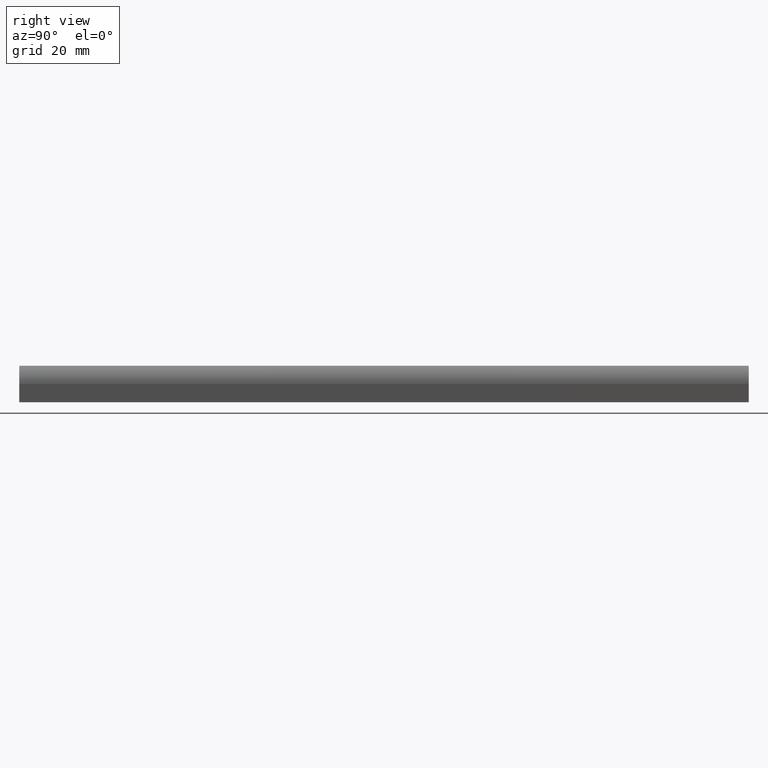
[diagram: clean part render]
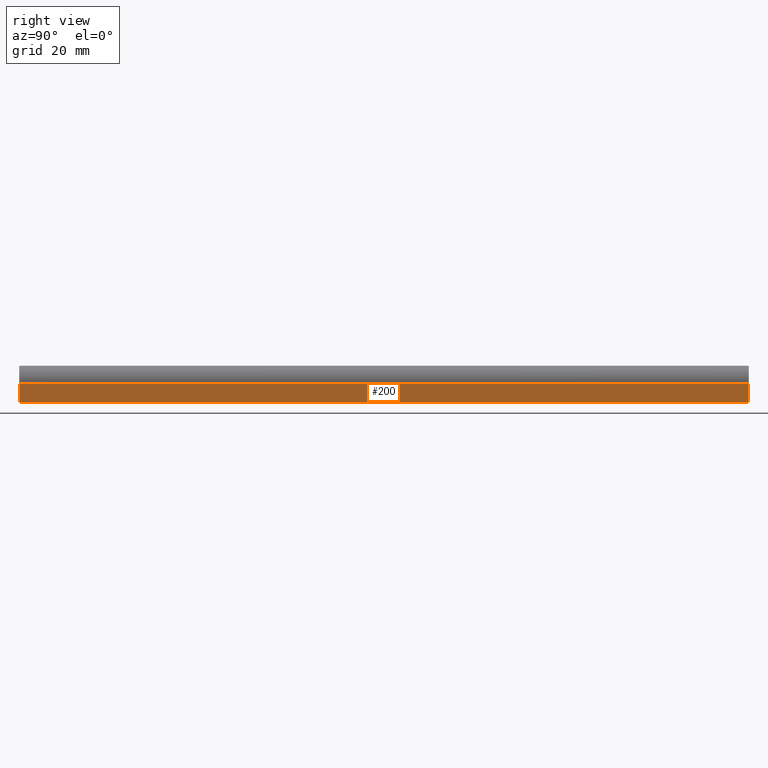
[diagram: same view with one face highlighted and labeled with its STEP entity id]
A machine part, right view. The second image highlights one B-rep face of the part: STEP entity #200.
In plain terms, the highlighted face is a freeform B-spline surface patch.
Its self-contained STEP definition (entity closure, byte-faithful):
#51=CARTESIAN_POINT('',(10.0,0.0,0.0));
#52=VERTEX_POINT('',#51);
#58=CARTESIAN_POINT('',(10.0,0.0,5.0));
#59=VERTEX_POINT('',#58);
#60=CARTESIAN_POINT('',(10.0,0.0,0.0));
#61=CARTESIAN_POINT('',(10.0,0.0,5.0));
#62=QUASI_UNIFORM_CURVE('',1,(#60,#61),.UNSPECIFIED.,.F.,.U.);
#63=EDGE_CURVE('',#52,#59,#62,.T.);
#97=CARTESIAN_POINT('',(10.0,200.0,0.0));
#98=VERTEX_POINT('',#97);
#111=CARTESIAN_POINT('',(10.0,200.0,5.0));
#112=VERTEX_POINT('',#111);
#128=CARTESIAN_POINT('',(10.0,200.0,0.0));
#129=CARTESIAN_POINT('',(10.0,200.0,5.0));
#130=QUASI_UNIFORM_CURVE('',1,(#128,#129),.UNSPECIFIED.,.F.,.U.);
#131=EDGE_CURVE('',#98,#112,#130,.T.);
#175=CARTESIAN_POINT('',(10.0,200.0,5.0));
#176=CARTESIAN_POINT('',(10.0,0.0,5.0));
#177=QUASI_UNIFORM_CURVE('',1,(#175,#176),.UNSPECIFIED.,.F.,.U.);
#178=EDGE_CURVE('',#112,#59,#177,.T.);
#185=CARTESIAN_POINT('',(10.0,-9.989999612361194,5.249749990309030));
#186=CARTESIAN_POINT('',(10.0,-9.989999612361194,-0.249750124419481));
#187=CARTESIAN_POINT('',(10.0,209.990004976779200,5.249749990309030));
#188=CARTESIAN_POINT('',(10.0,209.990004976779200,-0.249750124419481));
#189=B_SPLINE_SURFACE_WITH_KNOTS('',1,1,((#185,#187),(#186,#188)),.UNSPECIFIED.,.F.,.F.,.U.,(2,2),(2,2),(0.0,5.499500114728511),(0.0,219.980004589140410),.UNSPECIFIED.);
#190=ORIENTED_EDGE('',*,*,#63,.F.);
#191=CARTESIAN_POINT('',(10.0,200.0,0.0));
#192=CARTESIAN_POINT('',(10.0,0.0,0.0));
#193=QUASI_UNIFORM_CURVE('',1,(#191,#192),.UNSPECIFIED.,.F.,.U.);
#194=EDGE_CURVE('',#98,#52,#193,.T.);
#195=ORIENTED_EDGE('',*,*,#194,.F.);
#196=ORIENTED_EDGE('',*,*,#131,.T.);
#197=ORIENTED_EDGE('',*,*,#178,.T.);
#198=EDGE_LOOP('',(#190,#195,#196,#197));
#199=FACE_OUTER_BOUND('',#198,.T.);
#200=ADVANCED_FACE('',(#199),#189,.T.);